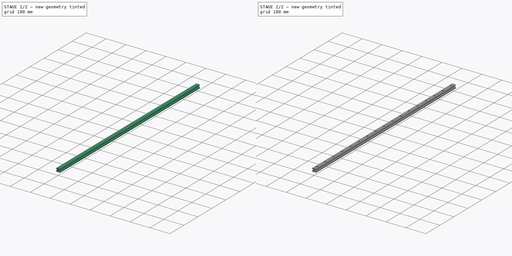
[diagram: build sequence overview — one tinted view per stage of 2, left to right]
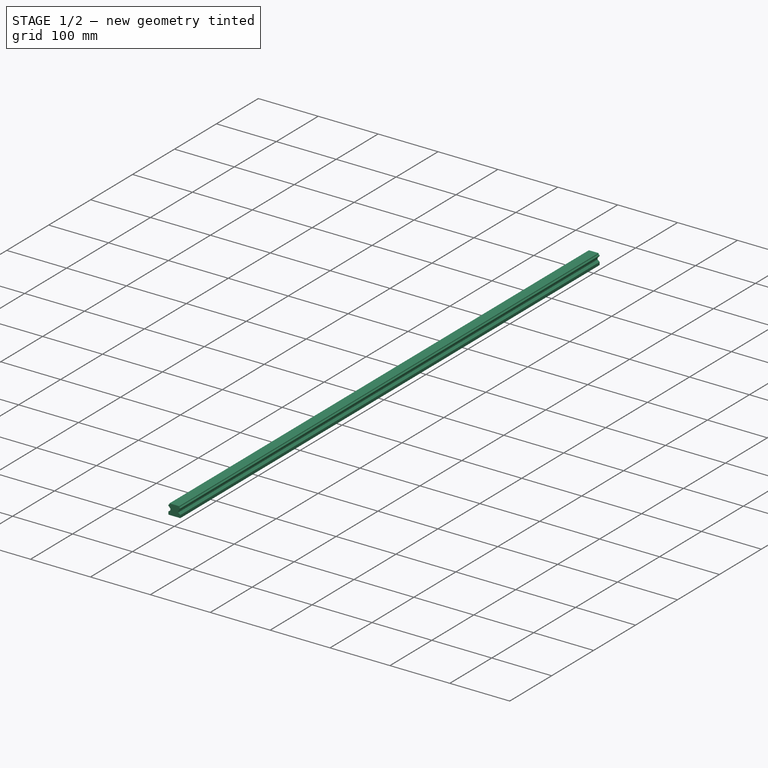
[diagram: stage 1 of 2 — iso view after this stage's code; geometry added in this stage tinted green]
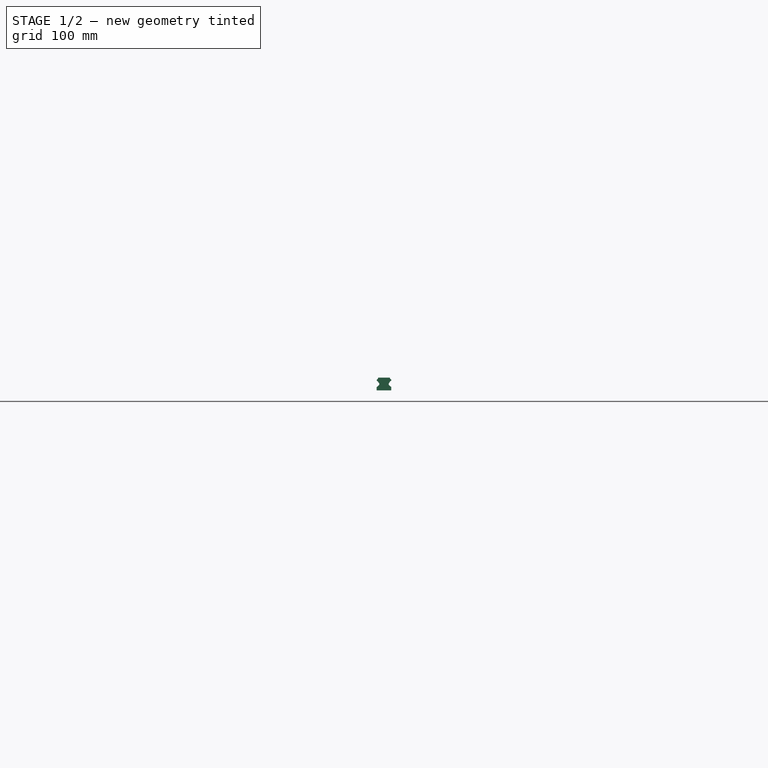
[diagram: stage 1 of 2 — front view after this stage's code; geometry added in this stage tinted green]
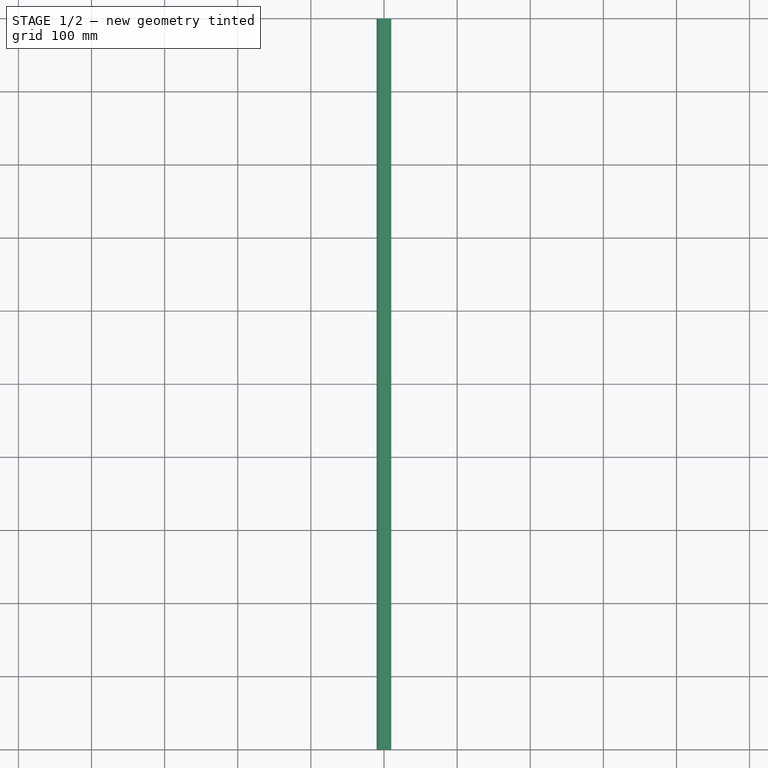
[diagram: stage 1 of 2 — top view after this stage's code; geometry added in this stage tinted green]
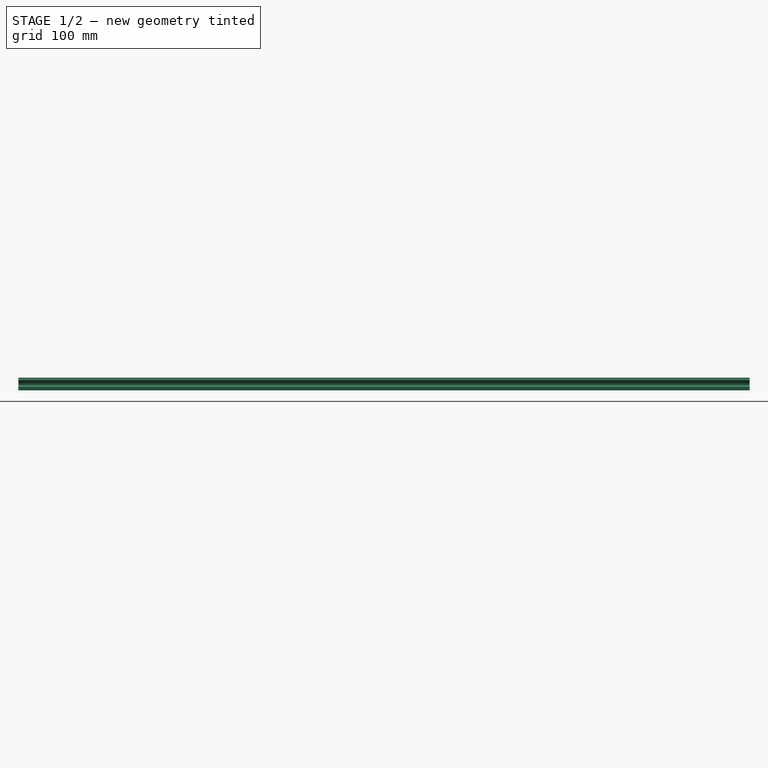
[diagram: stage 1 of 2 — right view after this stage's code; geometry added in this stage tinted green]
FCSTD DOCUMENT  (FreeCAD 0.20R29410 (Git))
Label: GHR20
License: All rights reserved
LicenseURL: http://en.wikipedia.org/wiki/All_rights_reserved
objects: Part::FeaturePython×9, App::AnnotationLabel×6, PartDesign::CoordinateSystem×4, Sketcher::SketchObject×2, PartDesign::Pad×1, App::DocumentObjectGroup×1, PartDesign::Mirrored×1, PartDesign::Groove×1, PartDesign::LinearPattern×1, Spreadsheet::Sheet×1, PartDesign::Body×1
note: 22 computed .brp shape members not serialized (recipe doc carries the construction recipe); baked Part::Feature solids carry a one-line shape summary decoded from their .brp

FEATURE [Sketcher::SketchObject] Sketch
  FullyConstrained = true
  MapMode = 5
  Placement = pos=(0,0,0) rot=(1,0,0;1.5708rad)
  Support = -> [XZ_Plane]
  expr: .Constraints.height = Spreadsheet.height
  expr: .Constraints.width = Spreadsheet.width / 2
  sketch-geometry (18):
    g0: LineSegment StartX=0 StartY=0 StartZ=0 EndX=10 EndY=0 EndZ=0
    g1: LineSegment StartX=10 StartY=0 StartZ=0 EndX=10 EndY=4.6 EndZ=0
    g2: LineSegment StartX=10 StartY=4.6 StartZ=0 EndX=6.49988 EndY=7.42828 EndZ=0
    g3: LineSegment StartX=6.49988 StartY=7.42828 StartZ=0 EndX=6.49988 EndY=9.92828 EndZ=0
    g4: LineSegment StartX=6.49988 StartY=9.92828 StartZ=0 EndX=7.44473 EndY=10.7619 EndZ=0
    g5: ArcOfCircle CenterX=6.12158 CenterY=12.2616 CenterZ=0 NormalX=0 NormalY=0 NormalZ=1 AngleXU=0 Radius=2 StartAngle=5.4353 EndAngle=6.02898
    g6: ArcOfCircle CenterX=9.79947 CenterY=11.306 CenterZ=0 NormalX=0 NormalY=0 NormalZ=1 AngleXU=0 Radius=1.8 StartAngle=2.51864 EndAngle=2.88739
    g7: ArcOfCircle CenterX=8.74366 CenterY=12.0645 CenterZ=0 NormalX=0 NormalY=0 NormalZ=1 AngleXU=0 Radius=0.5 StartAngle=1.69561 EndAngle=2.51864
    g8: ArcOfCircle CenterX=8.49469 CenterY=14.0489 CenterZ=0 NormalX=0 NormalY=0 NormalZ=1 AngleXU=0 Radius=1.5 StartAngle=4.8372 EndAngle=7.59446
    g9: ArcOfCircle CenterX=9.00793 CenterY=15.982 CenterZ=0 NormalX=0 NormalY=0 NormalZ=1 AngleXU=0 Radius=0.5 StartAngle=4.20325 EndAngle=4.45287
    g10: ArcOfCircle CenterX=9.49535 CenterY=16.8551 CenterZ=0 NormalX=0 NormalY=0 NormalZ=1 AngleXU=0 Radius=1.5 StartAngle=3.73378 EndAngle=4.20325
    g11: LineSegment StartX=8.25077 StartY=16.0179 StartZ=0 EndX=8.02 EndY=17.5 EndZ=0
    g12: LineSegment StartX=8.02 StartY=17.5 StartZ=0 EndX=0 EndY=17.5 EndZ=0
    g13: LineSegment StartX=0 StartY=17.5 StartZ=0 EndX=0 EndY=0 EndZ=0
    g14: LineSegment StartX=8.25077 StartY=16.0179 StartZ=0 EndX=9.49535 EndY=16.8551 EndZ=0
    g15: LineSegment StartX=7.44473 StartY=10.7619 StartZ=0 EndX=8.05731 EndY=11.7587 EndZ=0
    g16: LineSegment StartX=8.05731 StartY=11.7587 StartZ=0 EndX=8.33758 EndY=12.3562 EndZ=0
    g17: LineSegment StartX=8.33758 StartY=12.3562 StartZ=0 EndX=8.68142 EndY=12.5606 EndZ=0
  constraints (49):
    c: Horizontal(g0)
    c: Coincident(g0,g1)
    c: Coincident(g1,g2)
    c: Coincident(g2,g3)
    c: Coincident(g3,g4)
    c: Coincident(g11,g10)
    c: Coincident(g12,g11)
    c: PointOnObject(g12,g-2)
    c: Horizontal(g12)
    c: Coincident(g13,g12)
    c: Coincident(g13,g0)
    c: Distance(g13) = 17.5  'height'
    c: Distance(g0) = 10  'width'
    c: Distance(g1) = 4.6
    c: Distance(g2) = 4.5
    c: Distance(g3) = 2.5
    c: Distance(g4) = 1.26
    c: Distance(g12) = 8.02
    c: Distance(g11) = 1.5
    c: Diameter(g10) = 3
    c: Diameter(g9) = 1
    c: Diameter(g8) = 3
    c: Diameter(g7) = 1
    c: Diameter(g6) = 3.6
    c: Diameter(g5) = 4
    c: Tangent(g10,g9) = -1.5708
    c: Tangent(g9,g8) = 1.5708
    c: Tangent(g8,g7) = 1.5708
    c: Tangent(g7,g6) = -1.5708
    c: Tangent(g6,g5) = 1.5708
    c: Tangent(g5,g4) = -1.5708
    c: Vertical(g1)
    c: Vertical(g3)
    c: Angle(g2,g1) = 2.25043
    c: Angle(g3,g4) = 2.29371
    c: Angle(g12,g11) = 1.72526
    c: Coincident(g14,g10)
    c: Coincident(g14,g10)
    c: Angle(g14,g11) = 1.13307
    c: Coincident(g15,g4)
    c: Coincident(g15,g5)
    c: Distance(g15) = 1.17
    c: Coincident(g16,g5)
    c: Coincident(g16,g6)
    c: Distance(g16) = 0.66
    c: Coincident(g17,g6)
    c: Coincident(g17,g7)
    c: Distance(g17) = 0.4
    c: Coincident(g0,g-1)
FEATURE [PartDesign::Pad] Pad
  Direction = (0,-1,2e-16)
  Length = 1000
  Length2 = 10
  Placement = pos=(0,0,0) rot=(1,0,0;1.5708rad)
  Profile = -> Sketch
  ReferenceAxis = -> Sketch [N_Axis]
  Type = 0
  expr: Length = Spreadsheet.length
FEATURE [Part::FeaturePython] aCircle  # WARN: FeaturePython — macro-defined, semantics opaque (R4)
FEATURE [Part::FeaturePython] Radius  # WARN: FeaturePython — macro-defined, semantics opaque (R4)
FEATURE [App::AnnotationLabel] MeasureLbl
  BasePosition = (4.8,-20,12.9)
  LabelText = R = 4,80 mm
  TextPosition = (0,0,0)
FEATURE [Part::FeaturePython] aCircle001  # WARN: FeaturePython — macro-defined, semantics opaque (R4)
FEATURE [Part::FeaturePython] Radius001  # WARN: FeaturePython — macro-defined, semantics opaque (R4)
FEATURE [App::AnnotationLabel] MeasureLbl001
  BasePosition = (3,-20,4.4)
  LabelText = R = 3,00 mm
  TextPosition = (0,0,0)
FEATURE [Part::FeaturePython] aCircle002  # WARN: FeaturePython — macro-defined, semantics opaque (R4)
FEATURE [Part::FeaturePython] Radius002  # WARN: FeaturePython — macro-defined, semantics opaque (R4)
FEATURE [App::AnnotationLabel] MeasureLbl002
  BasePosition = (4.5,-20,12.6)
  LabelText = R = 4,50 mm
  TextPosition = (0,0,0)
FEATURE [Part::FeaturePython] DistPoints  # WARN: FeaturePython — macro-defined, semantics opaque (R4)
FEATURE [App::AnnotationLabel] MeasureLbl003
  BasePosition = (4.5,-20,8.5)
  LabelText = D = 8,20 mm
  TextPosition = (0,0,0)
FEATURE [Part::FeaturePython] DistPoints001  # WARN: FeaturePython — macro-defined, semantics opaque (R4)
FEATURE [App::AnnotationLabel] MeasureLbl004
  BasePosition = (3,-20,0.05)
  LabelText = D = 8,70 mm
  TextPosition = (0,0,0)
FEATURE [Part::FeaturePython] DistPoints002  # WARN: FeaturePython — macro-defined, semantics opaque (R4)
FEATURE [App::AnnotationLabel] MeasureLbl005
  BasePosition = (4.65,-20,12.75)
  LabelText = D = 0,42 mm
  TextPosition = (0,0,0)
FEATURE [App::DocumentObjectGroup] Measures
  Group = -> [aCircle,Radius,MeasureLbl,aCircle001,Radius001,MeasureLbl001,aCircle002,Radius002,MeasureLbl002,DistPoints,MeasureLbl003,DistPoints001,MeasureLbl004,DistPoints002,MeasureLbl005]
FEATURE [Sketcher::SketchObject] Sketch001
  AttachmentOffset = pos=(0,0,20) rot=(0,0,1;0rad)
  FullyConstrained = true
  MapMode = 5
  Placement = pos=(0,-20,-4.4e-15) rot=(1,0,0;1.5708rad)
  Support = -> [XZ_Plane]
  sketch-geometry (8):
    g0: LineSegment StartX=0 StartY=0 StartZ=0 EndX=3.3 EndY=0 EndZ=0
    g1: LineSegment StartX=3.3 StartY=0 StartZ=0 EndX=3 EndY=0.3 EndZ=0
    g2: LineSegment StartX=3 StartY=0.3 StartZ=0 EndX=3 EndY=9 EndZ=0
    g3: LineSegment StartX=3 StartY=9 StartZ=0 EndX=4.5 EndY=9 EndZ=0
    g4: LineSegment StartX=4.5 StartY=9 StartZ=0 EndX=4.5 EndY=17.2 EndZ=0
    g5: LineSegment StartX=4.5 StartY=17.2 StartZ=0 EndX=4.8 EndY=17.5 EndZ=0
    g6: LineSegment StartX=4.8 StartY=17.5 StartZ=0 EndX=0 EndY=17.5 EndZ=0
    g7: LineSegment StartX=0 StartY=17.5 StartZ=0 EndX=0 EndY=0 EndZ=0
  constraints (23):
    c: Coincident(g-1,g0)
    c: PointOnObject(g0,g-1)
    c: Coincident(g0,g1)
    c: Coincident(g1,g2)
    c: Vertical(g2)
    c: Coincident(g2,g3)
    c: Horizontal(g3)
    c: Coincident(g3,g4)
    c: Vertical(g4)
    c: Coincident(g4,g5)
    c: Coincident(g5,g6)
    c: PointOnObject(g6,g-2)
    c: Horizontal(g6)
    c: Coincident(g6,g7)
    c: Coincident(g7,g0)
    c: DistanceX(g1,g0) = 0.3
    c: DistanceY(g0,g1) = 0.3
    c: DistanceY(g2,g2) = 8.7
    c: DistanceX(g2) = 3
    c: DistanceY(g4,g4) = 8.2
    c: DistanceY(g4,g5) = 0.3
    c: DistanceX(g4,g5) = 0.3
    c: DistanceX(g4) = 4.5
FEATURE [PartDesign::Mirrored] Mirrored
  BaseFeature = -> Pad
  MirrorPlane = -> Sketch [V_Axis]
  Originals = -> [Pad]
  Placement = pos=(0,0,0) rot=(1,0,0;1.5708rad)
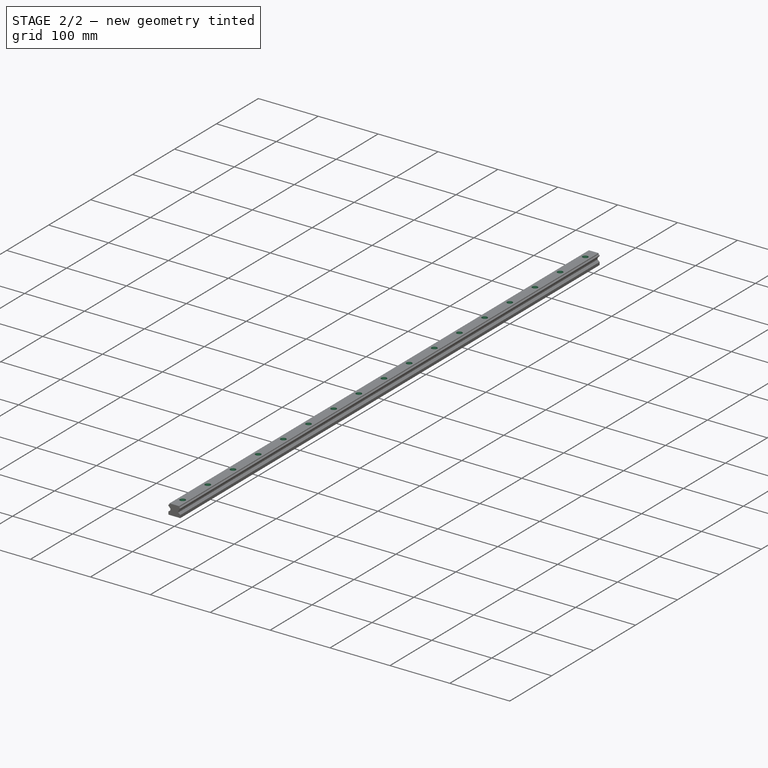
[diagram: stage 2 of 2 — iso view after this stage's code; geometry added in this stage tinted green]
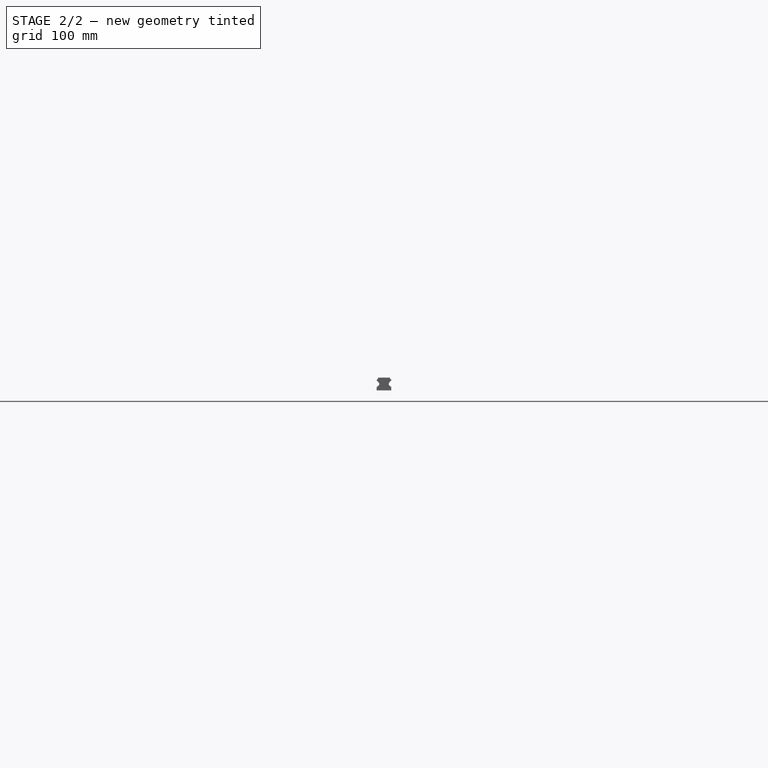
[diagram: stage 2 of 2 — front view after this stage's code; geometry added in this stage tinted green]
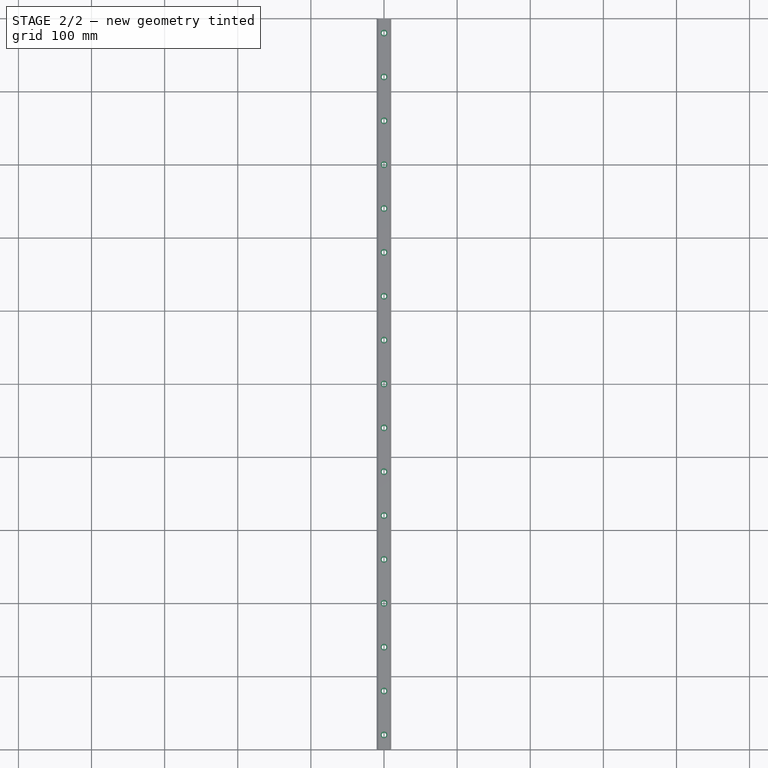
[diagram: stage 2 of 2 — top view after this stage's code; geometry added in this stage tinted green]
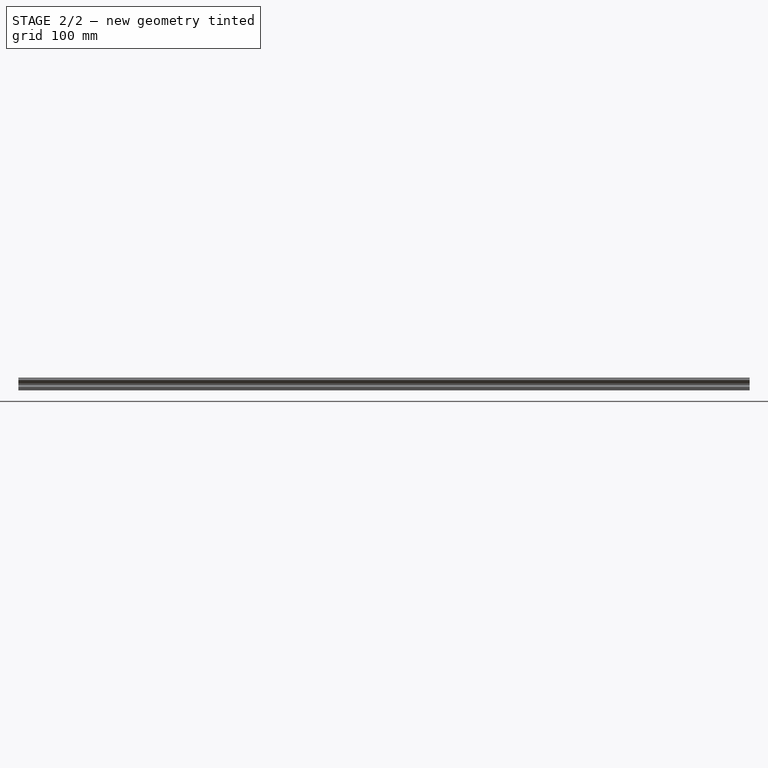
[diagram: stage 2 of 2 — right view after this stage's code; geometry added in this stage tinted green]
FEATURE [PartDesign::Groove] Groove
  Angle = 360
  Axis = (0,2e-16,1)
  Base = (0,-20,4.4e-15)
  BaseFeature = -> Mirrored
  Placement = pos=(0,0,0) rot=(1,0,0;1.5708rad)
  Profile = -> Sketch001
  ReferenceAxis = -> Sketch001 [V_Axis]
FEATURE [PartDesign::LinearPattern] LinearPattern
  BaseFeature = -> Groove
  Direction = -> Sketch001 [N_Axis]
  Length = 960
  Occurrences = 17
  Originals = -> [Groove]
  Placement = pos=(0,0,0) rot=(1,0,0;1.5708rad)
  expr: Length = Spreadsheet.hole_distance * (Occurrences - 1)
  expr: Occurrences = round(Pad.Length / Spreadsheet.hole_distance)
FEATURE [PartDesign::CoordinateSystem] Local_CS  label="bottom"
  AttacherType = Attacher::AttachEngine3D
  AttachmentOffset = pos=(0,-500,0) rot=(0,0,1;0rad)
  MapMode = 5
  Placement = pos=(0,-500,0) rot=(0,0,1;0rad)
  Support = -> [XY_Plane]
  expr: .AttachmentOffset.Base.y = -Spreadsheet.length / 2
FEATURE [Spreadsheet::Sheet] Spreadsheet
  cells = B2(height)==17.5mm; B3(width)==20mm; B4(length)==1000mm; B5(hole_offset)==20mm; B6(hole_distance)==60mm
FEATURE [PartDesign::CoordinateSystem] Local_CS001  label="top"
  AttacherType = Attacher::AttachEngine3D
  AttachmentOffset = pos=(0,-500,17.5) rot=(0,0,1;0rad)
  MapMode = 5
  Placement = pos=(0,-500,17.5) rot=(0,0,1;0rad)
  Support = -> [XY_Plane]
  expr: .AttachmentOffset.Base.y = -Spreadsheet.length / 2
  expr: .AttachmentOffset.Base.z = Spreadsheet.height
FEATURE [PartDesign::CoordinateSystem] Local_CS002
  AttacherType = Attacher::AttachEngine3D
  MapMode = 11
  Placement = pos=(0,-980,6.525e-13) rot=(0,0,1;3.14159rad)
  Support = -> [LinearPattern]
FEATURE [PartDesign::CoordinateSystem] Local_CS003
  AttacherType = Attacher::AttachEngine3D
  MapMode = 11
  Placement = pos=(0,-20,1.33e-14) rot=(0,0,1;3.14159rad)
  Support = -> [LinearPattern]
FEATURE [PartDesign::Body] Body  label="GHR20"
  Group = -> [Sketch,Pad,Sketch001,Mirrored,Groove,LinearPattern,Local_CS,Local_CS001,Local_CS002,Local_CS003]
  Origin = -> Origin
  Tip = -> LinearPattern
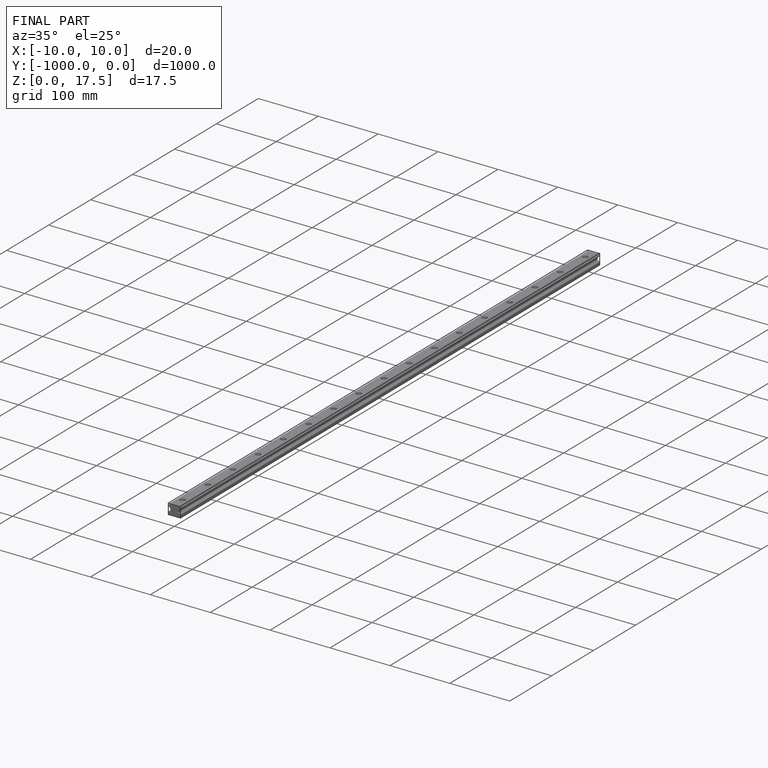
[diagram: finished part — iso view with bounding-box wireframe]
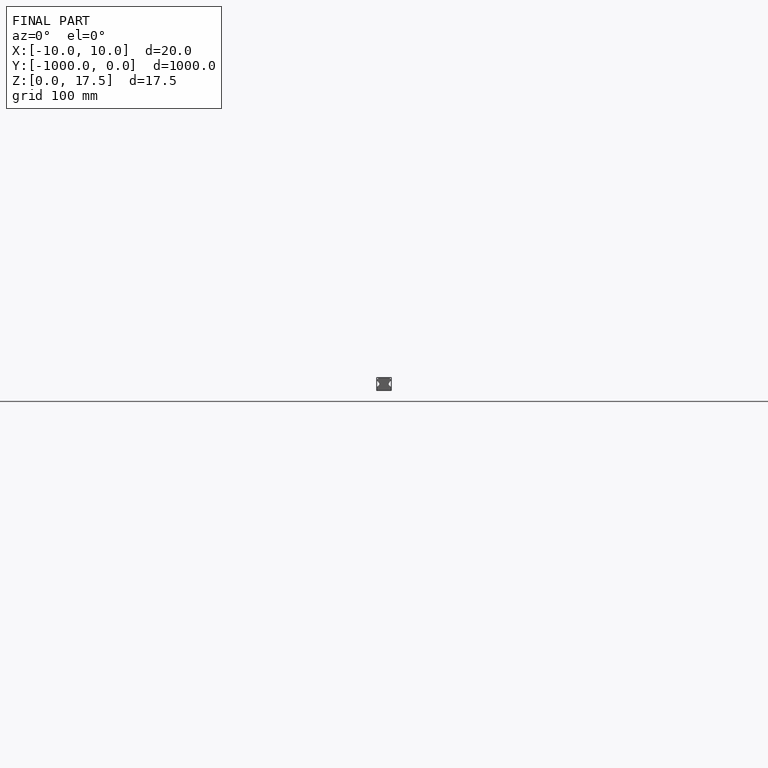
[diagram: finished part — front view with bounding-box wireframe]
